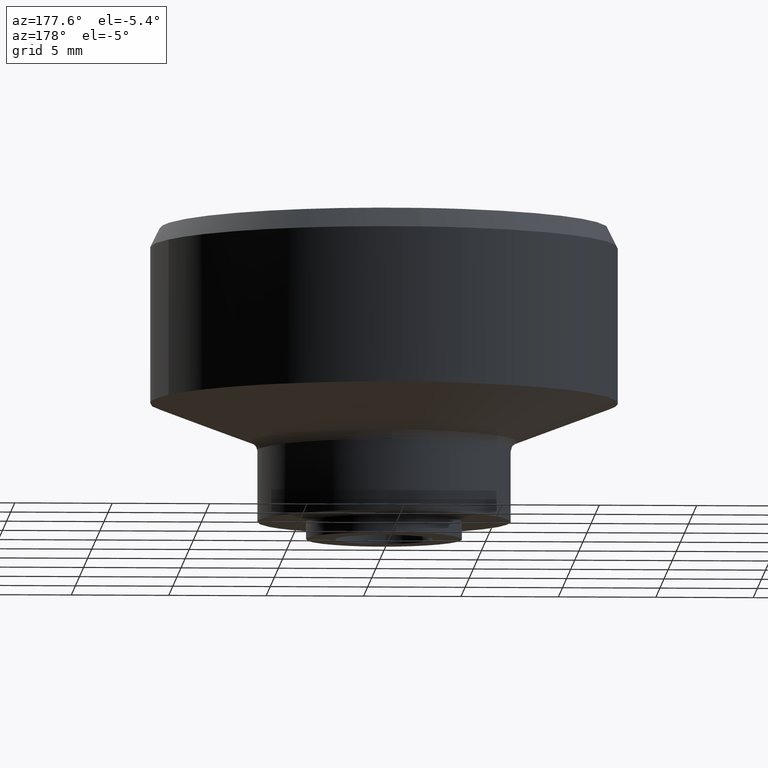
[diagram: clean part render]
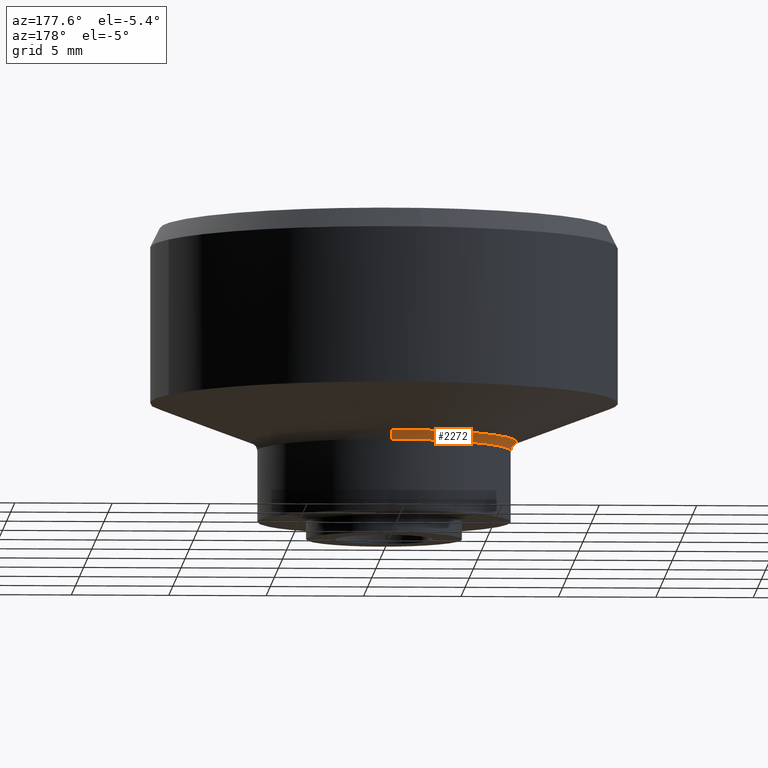
[diagram: same view with one face highlighted and labeled with its STEP entity id]
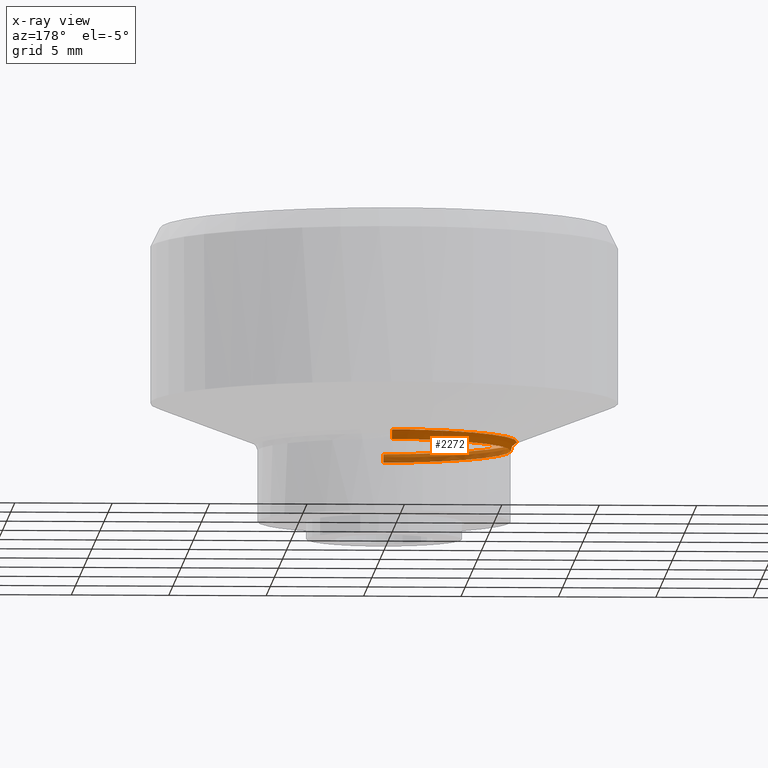
[diagram: x-ray of the same camera — body ghosted, the highlighted face saturated]
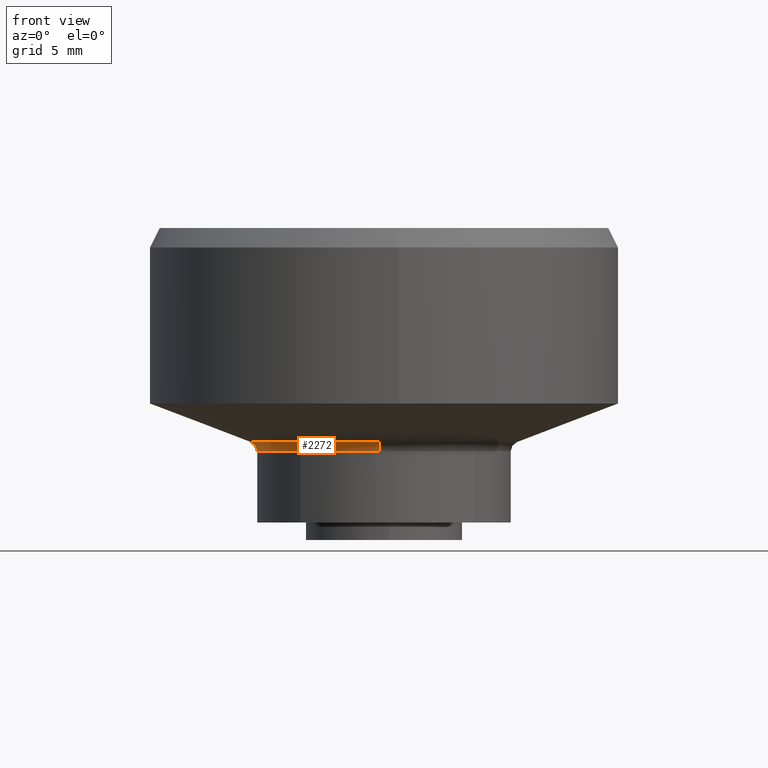
[diagram: same view with one face highlighted and labeled with its STEP entity id]
A machine part, auxiliary view. The second image highlights one B-rep face of the part: STEP entity #2272.
The next image is the same camera in x-ray: the body ghosted, the highlighted face saturated — about 45% of this face is hidden behind the body in this view.
A second angle (front view) of the same face is appended — the face is thin or edge-on in the first view.
In plain terms, the highlighted face is a freeform B-spline surface patch.
Its self-contained STEP definition (entity closure, byte-faithful):
#1306=CARTESIAN_POINT('',(-4.283301338635241,-4.889103153181029,4.555702347464901));
#1307=VERTEX_POINT('',#1306);
#1313=CARTESIAN_POINT('',(-6.500000000000000,0.0,4.555701999999901));
#1314=VERTEX_POINT('',#1313);
#1315=CARTESIAN_POINT('',(-4.283301338635241,-4.889103153181030,4.555702347464901));
#1316=CARTESIAN_POINT('',(-6.500000000000001,-2.947072468596944,4.555701999999901));
#1317=CARTESIAN_POINT('',(-6.500000000000000,0.0,4.555701999999901));
#1325=(BOUNDED_CURVE()B_SPLINE_CURVE(2,(#1315,#1316,#1317),.UNSPECIFIED.,.F.,.U.)B_SPLINE_CURVE_WITH_KNOTS((3,3),(0.865045252722972,1.0),.UNSPECIFIED.)CURVE()GEOMETRIC_REPRESENTATION_ITEM()RATIONAL_B_SPLINE_CURVE((0.854482185388693,0.841890678703501,1.0))REPRESENTATION_ITEM(''));
#1326=EDGE_CURVE('',#1307,#1314,#1325,.T.);
#1328=CARTESIAN_POINT('',(-0.126894147085798,6.498761256994768,4.555702929057389));
#1329=VERTEX_POINT('',#1328);
#1330=CARTESIAN_POINT('',(-6.500000000000000,0.0,4.555701999999901));
#1331=CARTESIAN_POINT('',(-6.500000000000001,6.374320644468337,4.555701999999902));
#1332=CARTESIAN_POINT('',(-0.126894147085798,6.498761256994768,4.555702929057389));
#1340=(BOUNDED_CURVE()B_SPLINE_CURVE(2,(#1330,#1331,#1332),.UNSPECIFIED.,.F.,.U.)B_SPLINE_CURVE_WITH_KNOTS((3,3),(0.0,0.246562505000334),.UNSPECIFIED.)CURVE()GEOMETRIC_REPRESENTATION_ITEM()RATIONAL_B_SPLINE_CURVE((1.0,0.711134057086976,0.992056198125302))REPRESENTATION_ITEM(''));
#1341=EDGE_CURVE('',#1314,#1329,#1340,.T.);
#1445=CARTESIAN_POINT('',(-0.244981572152255,-6.495381746233970,4.555702980456606));
#1446=VERTEX_POINT('',#1445);
#1462=CARTESIAN_POINT('',(-0.244981572152255,-6.495381746233970,4.555702980456606));
#1463=CARTESIAN_POINT('',(-2.549032104822150,-6.408481554087501,4.555702619303105));
#1464=CARTESIAN_POINT('',(-4.283301338635241,-4.889103153181030,4.555702347464901));
#1472=(BOUNDED_CURVE()B_SPLINE_CURVE(2,(#1462,#1463,#1464),.UNSPECIFIED.,.F.,.U.)B_SPLINE_CURVE_WITH_KNOTS((3,3),(0.756613347706060,0.865045252722972),.UNSPECIFIED.)CURVE()GEOMETRIC_REPRESENTATION_ITEM()RATIONAL_B_SPLINE_CURVE((0.984913885164090,0.864599065931665,0.854482185388693))REPRESENTATION_ITEM(''));
#1473=EDGE_CURVE('',#1446,#1307,#1472,.T.);
#1527=CARTESIAN_POINT('',(-0.133131990237946,6.817879846350895,5.021860733289540));
#1528=VERTEX_POINT('',#1527);
#1544=CARTESIAN_POINT('',(-6.819179549401331,0.0,5.021860733314310));
#1545=VERTEX_POINT('',#1544);
#1546=CARTESIAN_POINT('',(-6.819179549401331,0.0,5.021860733314310));
#1547=CARTESIAN_POINT('',(-6.819179549401332,6.687322130739482,5.021860733314310));
#1548=CARTESIAN_POINT('',(-0.133131990237946,6.817879846350895,5.021860733289540));
#1556=(BOUNDED_CURVE()B_SPLINE_CURVE(2,(#1546,#1547,#1548),.UNSPECIFIED.,.F.,.U.)B_SPLINE_CURVE_WITH_KNOTS((3,3),(0.0,0.246562331022120),.UNSPECIFIED.)CURVE()GEOMETRIC_REPRESENTATION_ITEM()RATIONAL_B_SPLINE_CURVE((1.0,0.711134260915133,0.992055801679806))REPRESENTATION_ITEM(''));
#1557=EDGE_CURVE('',#1545,#1528,#1556,.T.);
#1559=CARTESIAN_POINT('',(-0.257016122897381,-6.814334335629706,5.021860733263052));
#1560=VERTEX_POINT('',#1559);
#1561=CARTESIAN_POINT('',(-0.257016122897381,-6.814334335629706,5.021860733263052));
#1562=CARTESIAN_POINT('',(-6.819179549401332,-6.566829338384044,5.021860733314309));
#1563=CARTESIAN_POINT('',(-6.819179549401331,0.0,5.021860733314310));
#1571=(BOUNDED_CURVE()B_SPLINE_CURVE(2,(#1561,#1562,#1563),.UNSPECIFIED.,.F.,.U.)B_SPLINE_CURVE_WITH_KNOTS((3,3),(0.756613471418681,1.0),.UNSPECIFIED.)CURVE()GEOMETRIC_REPRESENTATION_ITEM()RATIONAL_B_SPLINE_CURVE((0.984913610623975,0.714854944911941,1.0))REPRESENTATION_ITEM(''));
#1572=EDGE_CURVE('',#1560,#1545,#1571,.T.);
#2191=CARTESIAN_POINT('',(-0.126894147085798,6.498761256994768,4.555702929057389));
#2192=CARTESIAN_POINT('',(-0.126894206474460,6.498761267512585,4.561985980517194));
#2193=CARTESIAN_POINT('',(-0.126897349219343,6.498919129927571,4.568267047722029));
#2194=CARTESIAN_POINT('',(-0.127064013933663,6.507290822596541,4.901361940998243));
#2195=CARTESIAN_POINT('',(-0.133131990237946,6.817879846350895,5.021860733289540));
#2203=(BOUNDED_CURVE()B_SPLINE_CURVE(2,(#2191,#2192,#2193,#2194,#2195),.UNSPECIFIED.,.F.,.U.)B_SPLINE_CURVE_WITH_KNOTS((3,2,3),(-2.039235213273498,-2.0,-0.314467285224715),.UNSPECIFIED.)CURVE()GEOMETRIC_REPRESENTATION_ITEM()RATIONAL_B_SPLINE_CURVE((0.968869507754677,0.973101247480566,0.977505800795127,0.788287542851344,0.918002848904595))REPRESENTATION_ITEM(''));
#2204=EDGE_CURVE('',#1329,#1528,#2203,.T.);
#2210=CARTESIAN_POINT('',(-0.244981572152255,-6.495381746233970,4.555702980456606));
#2211=CARTESIAN_POINT('',(-0.244981614967474,-6.495381756949572,4.561986006212985));
#2212=CARTESIAN_POINT('',(-0.244987609051020,-6.495539536176101,4.568267047722518));
#2213=CARTESIAN_POINT('',(-0.245305486048869,-6.503906851457646,4.901361940906110));
#2214=CARTESIAN_POINT('',(-0.257016122897381,-6.814334335629706,5.021860733263052));
#2222=(BOUNDED_CURVE()B_SPLINE_CURVE(2,(#2210,#2211,#2212,#2213,#2214),.UNSPECIFIED.,.F.,.U.)B_SPLINE_CURVE_WITH_KNOTS((3,2,3),(-2.039235053487331,-2.0,-0.314467285656174),.UNSPECIFIED.)CURVE()GEOMETRIC_REPRESENTATION_ITEM()RATIONAL_B_SPLINE_CURVE((0.991165005296400,0.995494108195216,1.0,0.806427483354643,0.939127776112900))REPRESENTATION_ITEM(''));
#2223=EDGE_CURVE('',#1446,#1560,#2222,.T.);
#2230=CARTESIAN_POINT('',(-0.245015673747813,-6.496163352464749,4.527742670210180));
#2231=CARTESIAN_POINT('',(-6.741179026212564,-6.251147678716937,4.527742670210179));
#2232=CARTESIAN_POINT('',(-6.496163352464749,0.245015673747814,4.527742670210180));
#2233=CARTESIAN_POINT('',(-6.264781958131395,6.379689881805259,4.527742670210179));
#2234=CARTESIAN_POINT('',(-0.126915867832566,6.499543318170938,4.527742670210179));
#2235=CARTESIAN_POINT('',(-0.244972929282852,-6.495030057510368,4.547992194723413));
#2236=CARTESIAN_POINT('',(-6.740002986793221,-6.250057128227518,4.547992194723413));
#2237=CARTESIAN_POINT('',(-6.495030057510368,0.244972929282853,4.547992194723413));
#2238=CARTESIAN_POINT('',(-6.263689029059538,6.378576906351705,4.547992194723413));
#2239=CARTESIAN_POINT('',(-0.126893726592446,6.498409433561113,4.547992194723412));
#2240=CARTESIAN_POINT('',(-0.244992138836375,-6.495539365326100,4.568267047721569));
#2241=CARTESIAN_POINT('',(-6.740531504162474,-6.250547226489726,4.568267047721569));
#2242=CARTESIAN_POINT('',(-6.495539365326100,0.244992138836376,4.568267047721569));
#2243=CARTESIAN_POINT('',(-6.264180196267319,6.379077082492983,4.568267047721570));
#2244=CARTESIAN_POINT('',(-0.126903676964677,6.498919006370636,4.568267047721569));
#2245=CARTESIAN_POINT('',(-0.245327983409292,-6.504443698560522,4.922736470334182));
#2246=CARTESIAN_POINT('',(-6.749771681969813,-6.259115715151231,4.922736470334182));
#2247=CARTESIAN_POINT('',(-6.504443698560522,0.245327983409293,4.922736470334182));
#2248=CARTESIAN_POINT('',(-6.272767373524036,6.387821764785850,4.922736470334183));
#2249=CARTESIAN_POINT('',(-0.127077641367756,6.507827972545968,4.922736470334182));
#2250=CARTESIAN_POINT('',(-0.258047158254255,-6.841670440987139,5.031568075545360));
#2251=CARTESIAN_POINT('',(-7.099717599241394,-6.583623282732886,5.031568075545361));
#2252=CARTESIAN_POINT('',(-6.841670440987139,0.258047158254256,5.031568075545360));
#2253=CARTESIAN_POINT('',(-6.597982719433112,6.719002173867920,5.031568075545361));
#2254=CARTESIAN_POINT('',(-0.133666057075496,6.845230174665139,5.031568075545361));
#2262=(BOUNDED_SURFACE()B_SPLINE_SURFACE(2,2,((#2230,#2235,#2240,#2245,#2250),(#2231,#2236,#2241,#2246,#2251),(#2232,#2237,#2242,#2247,#2252),(#2233,#2238,#2243,#2248,#2253),(#2234,#2239,#2244,#2249,#2254)),.UNSPECIFIED.,.F.,.F.,.U.)B_SPLINE_SURFACE_WITH_KNOTS((3,2,3),(3,2,3),(0.0,11.343710760628619,22.233673090832092),(0.0,0.045089119284932,0.682172380981690),.UNSPECIFIED.)GEOMETRIC_REPRESENTATION_ITEM()RATIONAL_B_SPLINE_SURFACE(((0.973005226031274,0.985599793510391,1.0,0.796533383995979,0.953545638761992),(0.688018593456664,0.696924297527259,0.707106781186548,0.563234157265025,0.674258587339463),(0.973005226031274,0.985599793510391,1.0,0.796533383995979,0.953545638761992),(0.699418058759648,0.708471317366584,0.718822509939086,0.572566126334263,0.685430069396364),(0.951118252649544,0.963429515418887,0.977505800795127,0.778616003383041,0.932096393212742)))REPRESENTATION_ITEM('')SURFACE());
#2263=ORIENTED_EDGE('',*,*,#1341,.F.);
#2264=ORIENTED_EDGE('',*,*,#1326,.F.);
#2265=ORIENTED_EDGE('',*,*,#1473,.F.);
#2266=ORIENTED_EDGE('',*,*,#2223,.T.);
#2267=ORIENTED_EDGE('',*,*,#1572,.T.);
#2268=ORIENTED_EDGE('',*,*,#1557,.T.);
#2269=ORIENTED_EDGE('',*,*,#2204,.F.);
#2270=EDGE_LOOP('',(#2263,#2264,#2265,#2266,#2267,#2268,#2269));
#2271=FACE_OUTER_BOUND('',#2270,.T.);
#2272=ADVANCED_FACE('',(#2271),#2262,.F.);